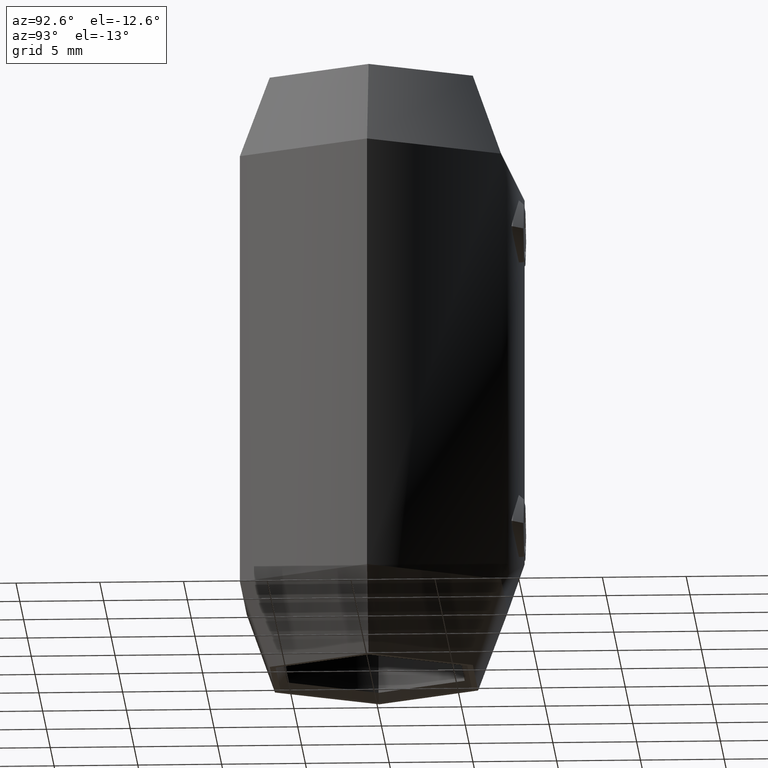
[diagram: clean part render]
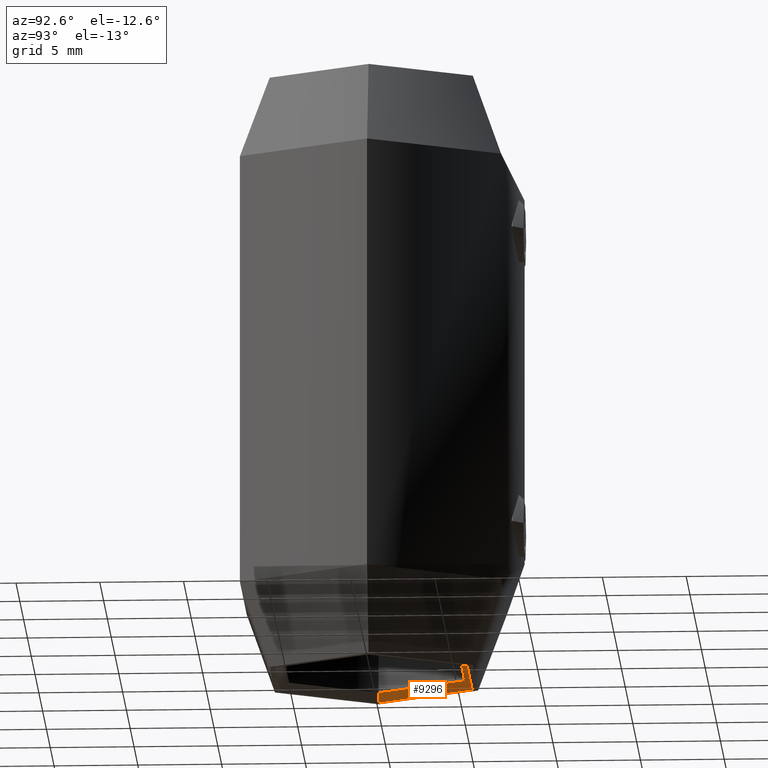
[diagram: same view with one face highlighted and labeled with its STEP entity id]
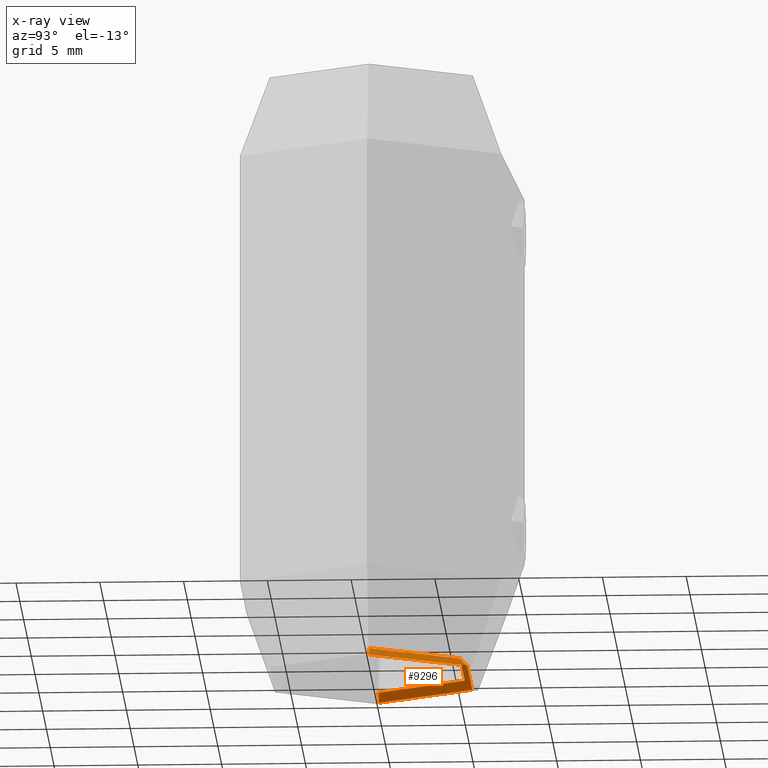
[diagram: x-ray of the same camera — body ghosted, the highlighted face saturated]
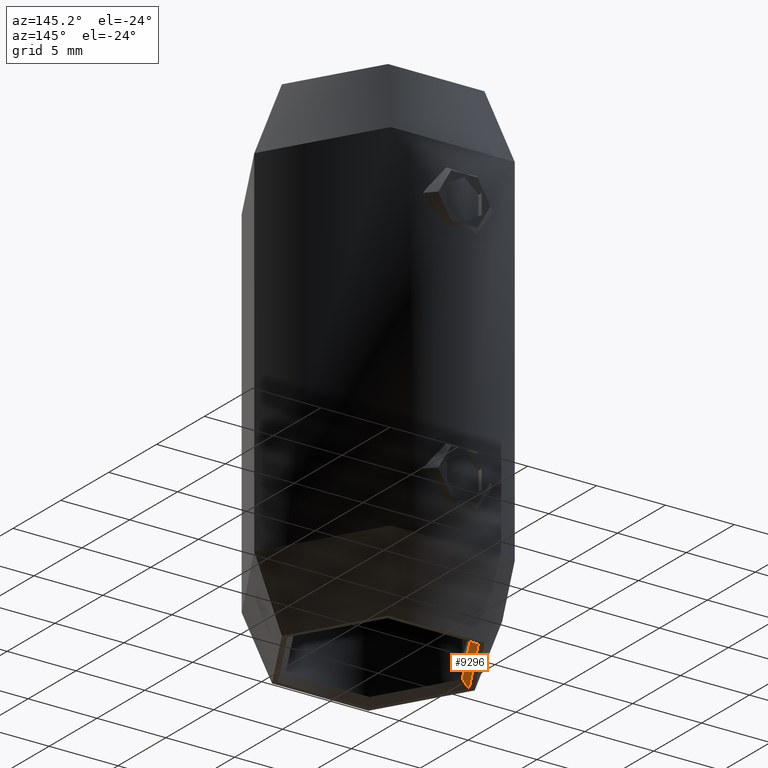
[diagram: same view with one face highlighted and labeled with its STEP entity id]
A machine part, auxiliary view. The second image highlights one B-rep face of the part: STEP entity #9296.
The next image is the same camera in x-ray: the body ghosted, the highlighted face saturated — about 0% of this face is hidden behind the body in this view.
A second angle (auxiliary view) of the same face is appended — the face is thin or edge-on in the first view.
In plain terms, the highlighted conical surface has half-angle 45 deg.
Its self-contained STEP definition (entity closure, byte-faithful):
#601 = DIRECTION ( 'NONE',  ( -0.000000000000000000, -0.000000000000000000, -1.000000000000000000 ) ) ;
#707 = DIRECTION ( 'NONE',  ( 1.000000000000000000, 0.000000000000000000, 0.000000000000000000 ) ) ;
#847 = AXIS2_PLACEMENT_3D ( 'NONE', #10199, #2678, #15316 ) ;
#1297 = CARTESIAN_POINT ( 'NONE',  ( 6.599999999999997868, 8.082668874372529047E-16, -18.00000000000000000 ) ) ;
#1986 = VERTEX_POINT ( 'NONE', #8018 ) ;
#2128 = ORIENTED_EDGE ( 'NONE', *, *, #14608, .F. ) ;
#2394 = DIRECTION ( 'NONE',  ( -0.000000000000000000, -0.000000000000000000, 1.000000000000000000 ) ) ;
#2678 = DIRECTION ( 'NONE',  ( -0.000000000000000000, -0.000000000000000000, -1.000000000000000000 ) ) ;
#2681 = VECTOR ( 'NONE', #11091, 1000.000000000000000 ) ;
#3930 = DIRECTION ( 'NONE',  ( 0.7071067811865414665, 8.659560562354857670E-17, -0.7071067811865536790 ) ) ;
#3968 = AXIS2_PLACEMENT_3D ( 'NONE', #10730, #601, #707 ) ;
#4207 = CARTESIAN_POINT ( 'NONE',  ( 6.599999999999997868, 8.082668874372529047E-16, -18.00000000000000000 ) ) ;
#4614 = VERTEX_POINT ( 'NONE', #4207 ) ;
#5832 = CIRCLE ( 'NONE', #3968, 6.099999999999999645 ) ;
#6990 = CONICAL_SURFACE ( 'NONE', #847, 6.599999999999997868, 0.7853981633974396193 ) ;
#7310 = CARTESIAN_POINT ( 'NONE',  ( -6.599999999999997868, 0.000000000000000000, -18.00000000000000000 ) ) ;
#7341 = VERTEX_POINT ( 'NONE', #7310 ) ;
#7980 = CIRCLE ( 'NONE', #12937, 6.599999999999997868 ) ;
#7995 = LINE ( 'NONE', #1297, #13794 ) ;
#8018 = CARTESIAN_POINT ( 'NONE',  ( -6.099999999999999645, 7.470345474798854293E-16, -17.49999999999999289 ) ) ;
#8843 = EDGE_CURVE ( 'NONE', #1986, #9719, #5832, .T. ) ;
#8947 = ORIENTED_EDGE ( 'NONE', *, *, #8843, .F. ) ;
#9296 = ADVANCED_FACE ( 'NONE', ( #12799 ), #6990, .F. ) ;
#9719 = VERTEX_POINT ( 'NONE', #10014 ) ;
#10014 = CARTESIAN_POINT ( 'NONE',  ( 6.099999999999999645, 0.000000000000000000, -17.49999999999999289 ) ) ;
#10176 = ORIENTED_EDGE ( 'NONE', *, *, #13439, .F. ) ;
#10199 = CARTESIAN_POINT ( 'NONE',  ( 0.000000000000000000, 0.000000000000000000, -18.00000000000000000 ) ) ;
#10730 = CARTESIAN_POINT ( 'NONE',  ( 0.000000000000000000, 0.000000000000000000, -17.49999999999999289 ) ) ;
#11091 = DIRECTION ( 'NONE',  ( -0.7071067811865414665, 0.000000000000000000, -0.7071067811865536790 ) ) ;
#11227 = CARTESIAN_POINT ( 'NONE',  ( 0.000000000000000000, 0.000000000000000000, -18.00000000000000000 ) ) ;
#11855 = EDGE_CURVE ( 'NONE', #1986, #7341, #12604, .T. ) ;
#12604 = LINE ( 'NONE', #14750, #2681 ) ;
#12799 = FACE_OUTER_BOUND ( 'NONE', #13371, .T. ) ;
#12937 = AXIS2_PLACEMENT_3D ( 'NONE', #11227, #2394, #14830 ) ;
#13371 = EDGE_LOOP ( 'NONE', ( #10176, #8947, #14108, #2128 ) ) ;
#13439 = EDGE_CURVE ( 'NONE', #9719, #4614, #7995, .T. ) ;
#13794 = VECTOR ( 'NONE', #3930, 1000.000000000000000 ) ;
#14108 = ORIENTED_EDGE ( 'NONE', *, *, #11855, .T. ) ;
#14608 = EDGE_CURVE ( 'NONE', #4614, #7341, #7980, .T. ) ;
#14750 = CARTESIAN_POINT ( 'NONE',  ( -6.599999999999997868, 0.000000000000000000, -18.00000000000000000 ) ) ;
#14830 = DIRECTION ( 'NONE',  ( 1.000000000000000000, 0.000000000000000000, 0.000000000000000000 ) ) ;
#15316 = DIRECTION ( 'NONE',  ( -1.000000000000000000, 0.000000000000000000, 0.000000000000000000 ) ) ;